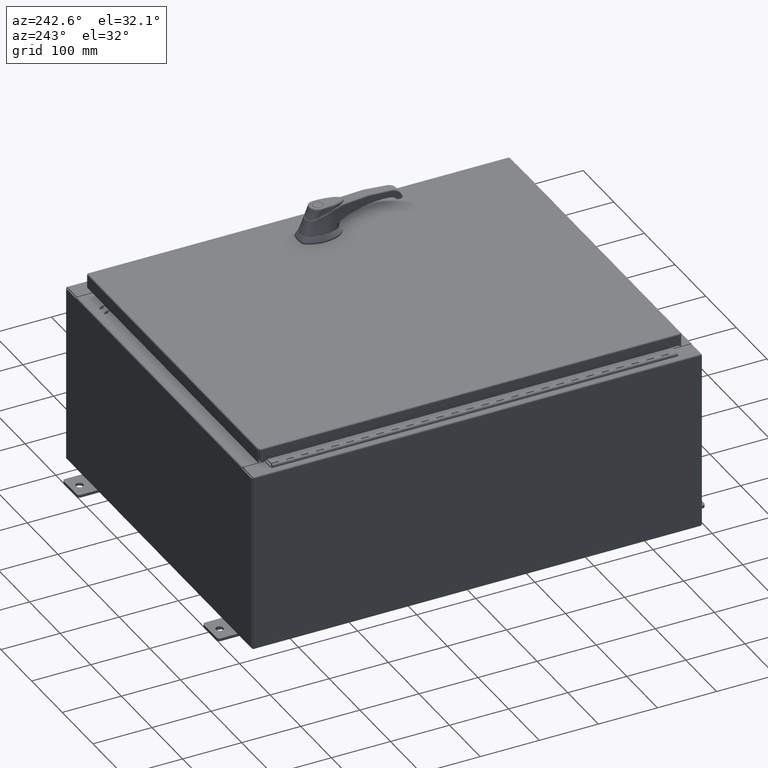
[diagram: clean part render]
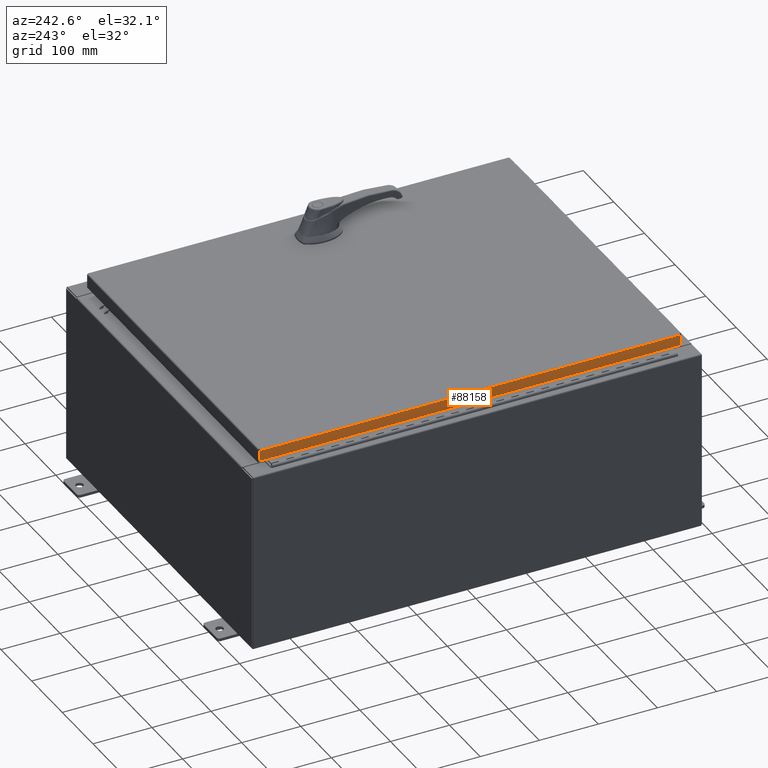
[diagram: same view with one face highlighted and labeled with its STEP entity id]
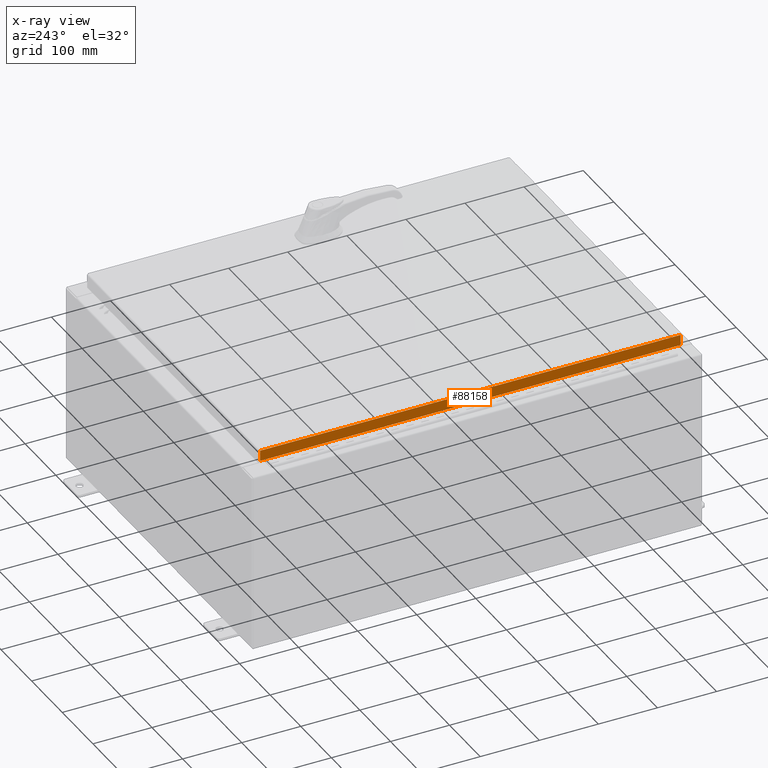
[diagram: x-ray of the same camera — body ghosted, the highlighted face saturated]
A machine part, auxiliary view. The second image highlights one B-rep face of the part: STEP entity #88158.
The next image is the same camera in x-ray: the body ghosted, the highlighted face saturated — about 0% of this face is hidden behind the body in this view.
In plain terms, the highlighted planar face has unit normal (1, 0, -0).
Its self-contained STEP definition (entity closure, byte-faithful):
#7018 = EDGE_LOOP ( 'NONE', ( #111388, #15951, #85882, #107123 ) ) ;
#7653 = EDGE_CURVE ( 'NONE', #103442, #96559, #67964, .T. ) ;
#8773 = LINE ( 'NONE', #68461, #102187 ) ;
#10772 = CARTESIAN_POINT ( 'NONE',  ( -11.07800000000000300, 14.00515786437627400, -0.7949999999999962700 ) ) ;
#15951 = ORIENTED_EDGE ( 'NONE', *, *, #63520, .T. ) ;
#21296 = VECTOR ( 'NONE', #26625, 39.37007874015748100 ) ;
#22634 = DIRECTION ( 'NONE',  ( -3.034122441942816500E-015, 0.0000000000000000000, -1.000000000000000000 ) ) ;
#26625 = DIRECTION ( 'NONE',  ( -3.034122441942816500E-015, 6.982962677686265900E-015, -1.000000000000000000 ) ) ;
#30973 = VERTEX_POINT ( 'NONE', #10772 ) ;
#31379 = CARTESIAN_POINT ( 'NONE',  ( -11.07800000000000300, -14.00515786437626200, -0.7949999999999996000 ) ) ;
#36459 = CARTESIAN_POINT ( 'NONE',  ( -11.07799999999999900, -14.00515786437626400, -0.08770000000000007000 ) ) ;
#41563 = DIRECTION ( 'NONE',  ( -4.379057701015054300E-047, 1.000000000000000000, 1.211441035930299800E-016 ) ) ;
#45366 = LINE ( 'NONE', #80823, #21296 ) ;
#51075 = EDGE_CURVE ( 'NONE', #96559, #113123, #72253, .T. ) ;
#59055 = CARTESIAN_POINT ( 'NONE',  ( -11.07799999999999900, -14.09399999999999600, -0.08770000000000004200 ) ) ;
#59439 = DIRECTION ( 'NONE',  ( 3.675660434206577100E-031, -1.000000000000000000, -1.083515668565077200E-045 ) ) ;
#61687 = EDGE_CURVE ( 'NONE', #113123, #30973, #8773, .T. ) ;
#63520 = EDGE_CURVE ( 'NONE', #103442, #30973, #45366, .T. ) ;
#67767 = PLANE ( 'NONE',  #115614 ) ;
#67964 = LINE ( 'NONE', #59055, #113215 ) ;
#68461 = CARTESIAN_POINT ( 'NONE',  ( -11.07800000000000300, -14.09399999999999600, -0.7949999999999997100 ) ) ;
#69348 = CARTESIAN_POINT ( 'NONE',  ( -11.07799999999999900, 14.00515786437626900, -0.08770000000000004200 ) ) ;
#72253 = LINE ( 'NONE', #97297, #93504 ) ;
#76840 = DIRECTION ( 'NONE',  ( 1.000000000000000000, 3.675660434206576600E-031, -3.034122441942816500E-015 ) ) ;
#79122 = DIRECTION ( 'NONE',  ( -3.034122441942816500E-015, 6.982962677686265900E-015, -1.000000000000000000 ) ) ;
#80823 = CARTESIAN_POINT ( 'NONE',  ( -11.07799999999999900, 14.00515786437626900, 1.316703167298978800E-013 ) ) ;
#85882 = ORIENTED_EDGE ( 'NONE', *, *, #61687, .F. ) ;
#88158 = ADVANCED_FACE ( 'NONE', ( #109213 ), #67767, .F. ) ;
#93504 = VECTOR ( 'NONE', #79122, 39.37007874015748100 ) ;
#93872 = CARTESIAN_POINT ( 'NONE',  ( -11.07799999999999900, -4.071896629014046000E-030, 3.387282206785410600E-014 ) ) ;
#96559 = VERTEX_POINT ( 'NONE', #36459 ) ;
#97297 = CARTESIAN_POINT ( 'NONE',  ( -11.07799999999999900, -14.00515786437626500, -0.07469999999999976700 ) ) ;
#102187 = VECTOR ( 'NONE', #41563, 39.37007874015748100 ) ;
#103442 = VERTEX_POINT ( 'NONE', #69348 ) ;
#107123 = ORIENTED_EDGE ( 'NONE', *, *, #51075, .F. ) ;
#109213 = FACE_OUTER_BOUND ( 'NONE', #7018, .T. ) ;
#111388 = ORIENTED_EDGE ( 'NONE', *, *, #7653, .F. ) ;
#113123 = VERTEX_POINT ( 'NONE', #31379 ) ;
#113215 = VECTOR ( 'NONE', #59439, 39.37007874015748100 ) ;
#115614 = AXIS2_PLACEMENT_3D ( 'NONE', #93872, #76840, #22634 ) ;